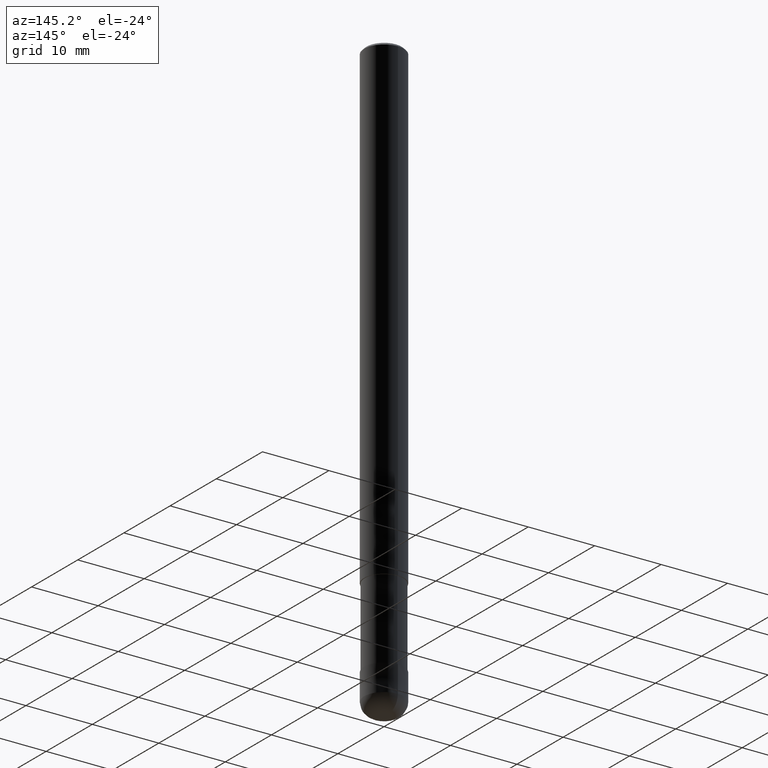
[diagram: clean part render]
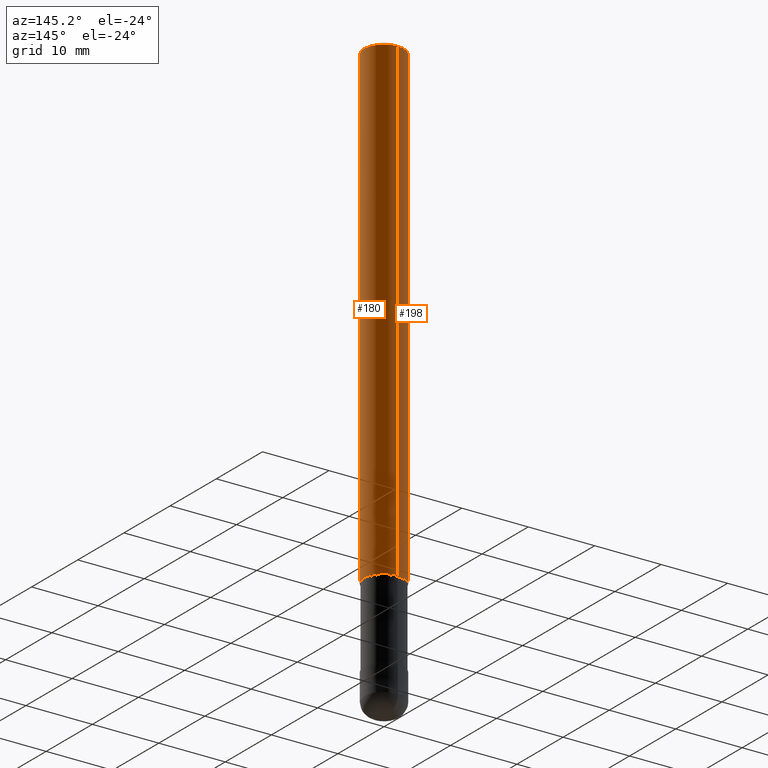
[diagram: same view with one multi-face feature highlighted, each face labeled with its STEP entity id]
A machine part, auxiliary view. The highlighted faces form ONE feature: a constant-radius fillet chain: 2 tangent blend faces with common blend radius 3 mm. The faces share edges in the B-rep.
Their STEP definitions:
[1] entity #198 (Cylinder):
#110=EDGE_CURVE('',#146,#158,#248,.T.);
#112=VERTEX_POINT('',#250);
#128=EDGE_CURVE('',#158,#112,#267,.T.);
#130=VERTEX_POINT('',#269);
#140=EDGE_CURVE('',#146,#130,#281,.T.);
#146=VERTEX_POINT('',#287);
#158=VERTEX_POINT('',#299);
#190=EDGE_CURVE('',#112,#130,#339,.T.);
#198=ADVANCED_FACE('',(#348),#349,.T.);
#248=LINE('',#399,#400);
#250=CARTESIAN_POINT('',(0.0,3.0,-0.400000000000006));
#267=CIRCLE('',#425,3.0);
#269=CARTESIAN_POINT('',(0.0,3.0,-72.0));
#281=CIRCLE('',#442,3.0);
#287=CARTESIAN_POINT('',(3.67381906146713E-016,-3.0,-72.0));
#299=CARTESIAN_POINT('',(3.67381906146713E-016,-3.0,-0.400000000000006));
#339=LINE('',#511,#512);
#348=FACE_OUTER_BOUND('',#523,.T.);
#349=CYLINDRICAL_SURFACE('',#524,3.0);
#399=CARTESIAN_POINT('',(3.67381906146713E-016,-3.0,-36.2));
#400=VECTOR('',#560,1.0);
#425=AXIS2_PLACEMENT_3D('',#574,#575,#576);
#442=AXIS2_PLACEMENT_3D('',#597,#598,#599);
#511=CARTESIAN_POINT('',(-3.67381906146713E-016,3.0,-36.2));
#512=VECTOR('',#671,1.0);
#523=EDGE_LOOP('',(#687,#688,#689,#690));
#524=AXIS2_PLACEMENT_3D('',#691,#692,#693);
#560=DIRECTION('',(-0.0,-0.0,1.0));
#574=CARTESIAN_POINT('',(0.0,0.0,-0.400000000000006));
#575=DIRECTION('',(0.0,0.0,-1.0));
#576=DIRECTION('',(0.0,1.0,0.0));
#597=CARTESIAN_POINT('',(0.0,0.0,-72.0));
#598=DIRECTION('',(0.0,0.0,-1.0));
#599=DIRECTION('',(0.0,1.0,0.0));
#671=DIRECTION('',(0.0,0.0,-1.0));
#687=ORIENTED_EDGE('',*,*,#190,.T.);
#688=ORIENTED_EDGE('',*,*,#140,.F.);
#689=ORIENTED_EDGE('',*,*,#110,.T.);
#690=ORIENTED_EDGE('',*,*,#128,.T.);
#691=CARTESIAN_POINT('',(0.0,0.0,-36.2));
#692=DIRECTION('',(-0.0,-0.0,1.0));
#693=DIRECTION('',(0.0,1.0,0.0));
[2] entity #180 (Cylinder):
#110=EDGE_CURVE('',#146,#158,#248,.T.);
#112=VERTEX_POINT('',#250);
#114=EDGE_CURVE('',#112,#158,#252,.T.);
#130=VERTEX_POINT('',#269);
#146=VERTEX_POINT('',#287);
#158=VERTEX_POINT('',#299);
#180=ADVANCED_FACE('',(#325),#326,.T.);
#190=EDGE_CURVE('',#112,#130,#339,.T.);
#208=EDGE_CURVE('',#130,#146,#361,.T.);
#248=LINE('',#399,#400);
#250=CARTESIAN_POINT('',(0.0,3.0,-0.400000000000006));
#252=CIRCLE('',#405,3.0);
#269=CARTESIAN_POINT('',(0.0,3.0,-72.0));
#287=CARTESIAN_POINT('',(3.67381906146713E-016,-3.0,-72.0));
#299=CARTESIAN_POINT('',(3.67381906146713E-016,-3.0,-0.400000000000006));
#325=FACE_OUTER_BOUND('',#497,.T.);
#326=CYLINDRICAL_SURFACE('',#498,3.0);
#339=LINE('',#511,#512);
#361=CIRCLE('',#538,3.0);
#399=CARTESIAN_POINT('',(3.67381906146713E-016,-3.0,-36.2));
#400=VECTOR('',#560,1.0);
#405=AXIS2_PLACEMENT_3D('',#561,#562,#563);
#497=EDGE_LOOP('',(#639,#640,#641,#642));
#498=AXIS2_PLACEMENT_3D('',#643,#644,#645);
#511=CARTESIAN_POINT('',(-3.67381906146713E-016,3.0,-36.2));
#512=VECTOR('',#671,1.0);
#538=AXIS2_PLACEMENT_3D('',#713,#714,#715);
#560=DIRECTION('',(-0.0,-0.0,1.0));
#561=CARTESIAN_POINT('',(0.0,0.0,-0.400000000000006));
#562=DIRECTION('',(0.0,0.0,-1.0));
#563=DIRECTION('',(0.0,1.0,0.0));
#639=ORIENTED_EDGE('',*,*,#190,.F.);
#640=ORIENTED_EDGE('',*,*,#114,.T.);
#641=ORIENTED_EDGE('',*,*,#110,.F.);
#642=ORIENTED_EDGE('',*,*,#208,.F.);
#643=CARTESIAN_POINT('',(0.0,0.0,-36.2));
#644=DIRECTION('',(-0.0,-0.0,1.0));
#645=DIRECTION('',(0.0,1.0,0.0));
#671=DIRECTION('',(0.0,0.0,-1.0));
#713=CARTESIAN_POINT('',(0.0,0.0,-72.0));
#714=DIRECTION('',(0.0,0.0,-1.0));
#715=DIRECTION('',(0.0,1.0,0.0));